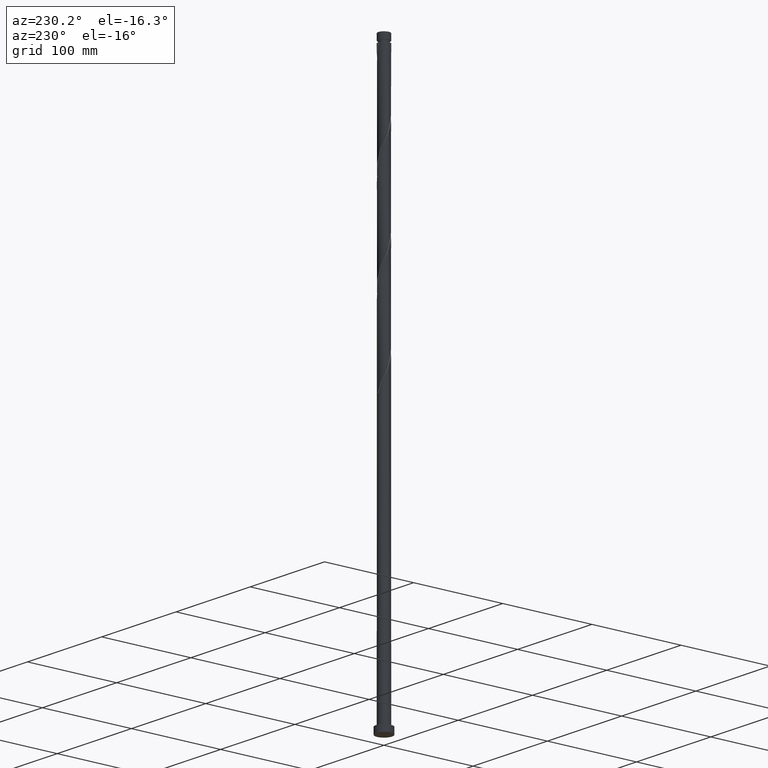
[diagram: clean part render]
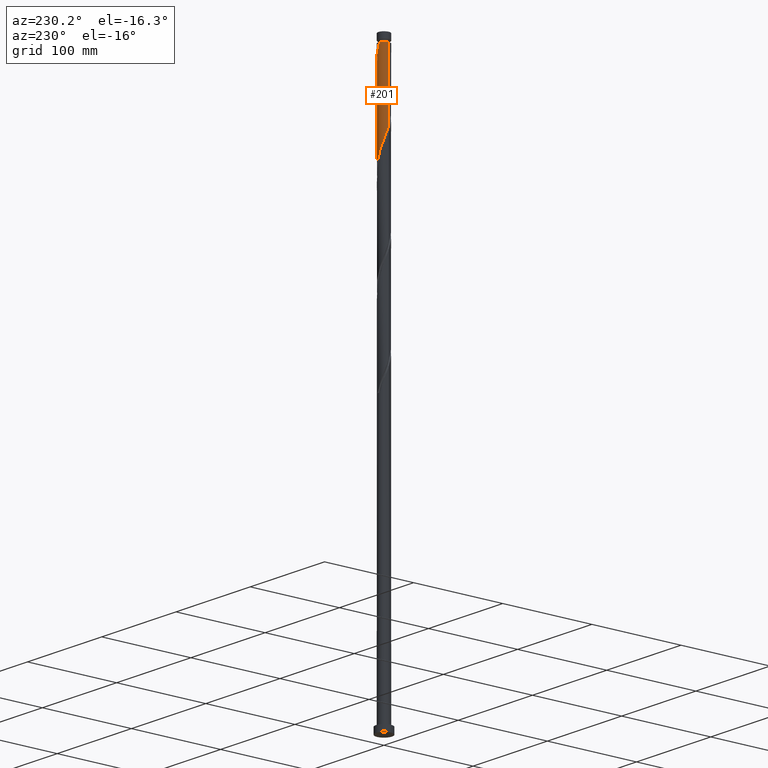
[diagram: same view with one face highlighted and labeled with its STEP entity id]
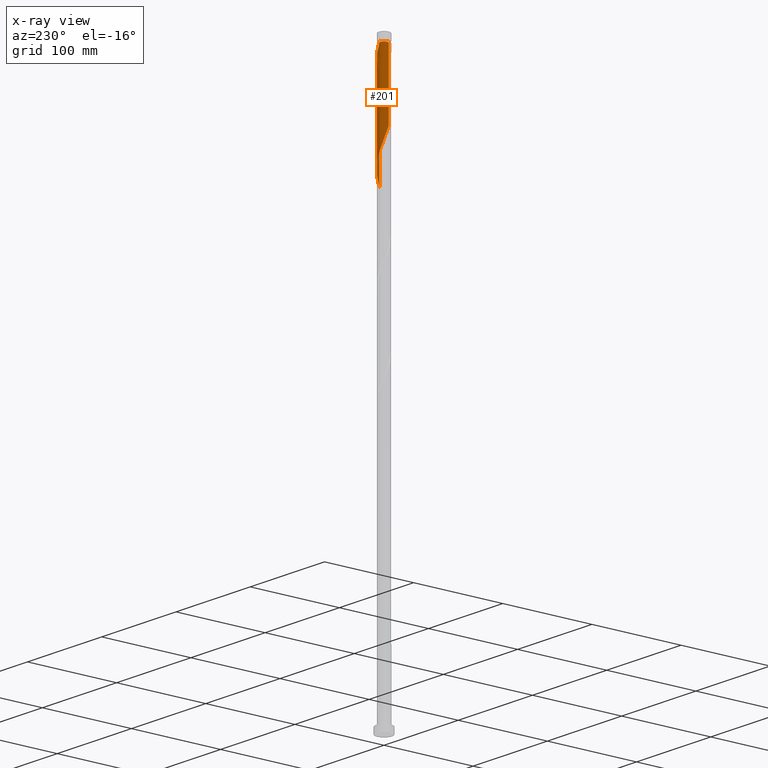
[diagram: x-ray of the same camera — body ghosted, the highlighted face saturated]
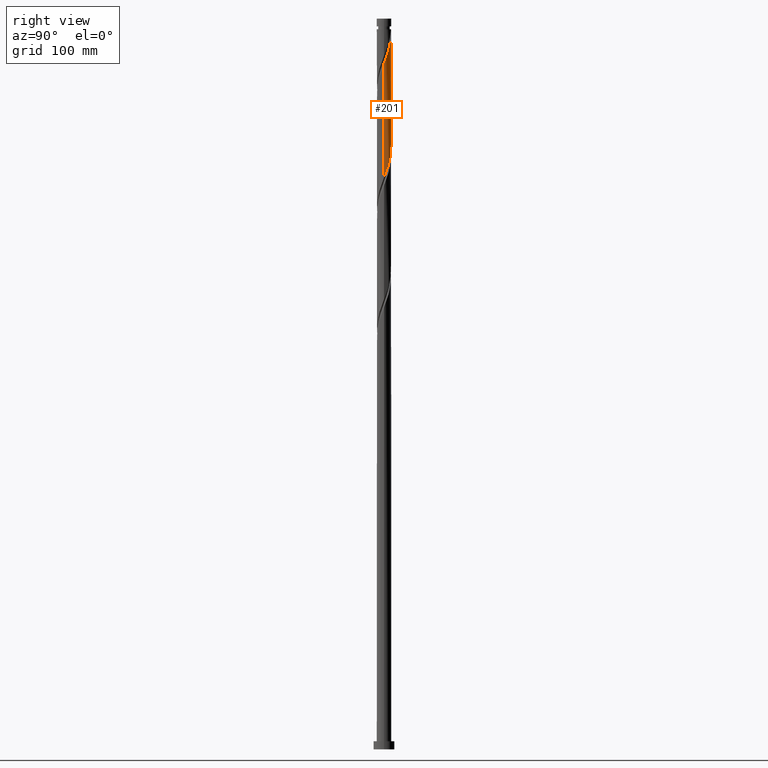
[diagram: same view with one face highlighted and labeled with its STEP entity id]
A machine part, auxiliary view. The second image highlights one B-rep face of the part: STEP entity #201.
The next image is the same camera in x-ray: the body ghosted, the highlighted face saturated — about 0% of this face is hidden behind the body in this view.
A second angle (right view) of the same face is appended — the face is thin or edge-on in the first view.
In plain terms, the highlighted cylindrical surface (edge-blend (fillet) strip) has radius 6.25 mm, axis along (-0, -0, -1).
Its self-contained STEP definition (entity closure, byte-faithful):
#12 = VERTEX_POINT ( 'NONE', #1456 ) ;
#73 = VERTEX_POINT ( 'NONE', #112 ) ;
#76 = AXIS2_PLACEMENT_3D ( 'NONE', #161, #1340, #1509 ) ;
#90 = CARTESIAN_POINT ( 'NONE',  ( -3.207255081654753592, 5.364327995303769470, 528.1155306014414919 ) ) ;
#99 = CARTESIAN_POINT ( 'NONE',  ( -6.213629152942616862, 0.6732850434263681905, 543.5567070720297806 ) ) ;
#110 = CARTESIAN_POINT ( 'NONE',  ( 6.187074021647200439, 1.057368058992053994, 495.6890600132061877 ) ) ;
#112 = CARTESIAN_POINT ( 'NONE',  ( -1.243734296381637794, 6.124999999983996801, 620.7625894249711109 ) ) ;
#133 = EDGE_LOOP ( 'NONE', ( #1832, #446, #1118, #1156, #441 ) ) ;
#151 = CARTESIAN_POINT ( 'NONE',  ( 2.166952786544130038, 5.862321692033692244, 611.4978835426180694 ) ) ;
#161 = CARTESIAN_POINT ( 'NONE',  ( 0.000000000000000000, 0.000000000000000000, 630.0000000000000000 ) ) ;
#168 = EDGE_CURVE ( 'NONE', #1854, #73, #1480, .T. ) ;
#201 = ADVANCED_FACE ( 'NONE', ( #1895 ), #379, .T. ) ;
#256 = VECTOR ( 'NONE', #620, 1000.000000000000000 ) ;
#277 = CARTESIAN_POINT ( 'NONE',  ( 5.887436458037860199, 2.176236226627274561, 498.7772953073238682 ) ) ;
#286 = CARTESIAN_POINT ( 'NONE',  ( 5.045516553015568562, 3.688531240649304266, 503.4096482485003321 ) ) ;
#305 = CARTESIAN_POINT ( 'NONE',  ( 3.704333273337804933, 5.067132045009369534, 606.8655306014414919 ) ) ;
#318 = CARTESIAN_POINT ( 'NONE',  ( 6.151240105858516216, 1.249062577133805085, 594.5125894249711109 ) ) ;
#358 = AXIS2_PLACEMENT_3D ( 'NONE', #1531, #1025, #519 ) ;
#379 = CYLINDRICAL_SURFACE ( 'NONE', #76, 6.250000000000000000 ) ;
#386 = VERTEX_POINT ( 'NONE', #396 ) ;
#392 = CARTESIAN_POINT ( 'NONE',  ( -0.6761694631508416986, 6.240248954859151986, 619.2184717779118728 ) ) ;
#396 = CARTESIAN_POINT ( 'NONE',  ( 6.250000000000012434, 3.047503660553396625E-15, 591.1643806502768257 ) ) ;
#415 = CARTESIAN_POINT ( 'NONE',  ( 5.387309307051770801, 3.220995279672364653, 501.8655306014415487 ) ) ;
#419 = CARTESIAN_POINT ( 'NONE',  ( 6.250000000000001776, -7.260229308965499018E-15, 492.8607981996651120 ) ) ;
#426 = CARTESIAN_POINT ( 'NONE',  ( 0.09709155987255846387, 6.249245812816258017, 518.8508247190885641 ) ) ;
#436 = CARTESIAN_POINT ( 'NONE',  ( 0.6761694631508501363, 6.240248954859140440, 517.3067070720296670 ) ) ;
#441 = ORIENTED_EDGE ( 'NONE', *, *, #168, .T. ) ;
#446 = ORIENTED_EDGE ( 'NONE', *, *, #576, .T. ) ;
#467 = CARTESIAN_POINT ( 'NONE',  ( 4.928495079256989264, 3.843492715452935027, 602.2331776602650280 ) ) ;
#478 = CARTESIAN_POINT ( 'NONE',  ( 2.710176889971715131, 5.661523945598186280, 609.9537658955590587 ) ) ;
#519 = DIRECTION ( 'NONE',  ( -1.000000000000000000, 0.000000000000000000, 0.000000000000000000 ) ) ;
#552 = CARTESIAN_POINT ( 'NONE',  ( -0.09709155987255929654, 6.249245812816266898, 617.6743541308532031 ) ) ;
#576 = EDGE_CURVE ( 'NONE', #386, #726, #1965, .T. ) ;
#584 = CARTESIAN_POINT ( 'NONE',  ( 5.637372882544817720, 2.698615753149816943, 500.3214129543825948 ) ) ;
#598 = CARTESIAN_POINT ( 'NONE',  ( -5.284647128575529429, 3.386800390923074389, 535.8361188367356363 ) ) ;
#607 = CARTESIAN_POINT ( 'NONE',  ( 6.250000000000001776, -7.260229308965499018E-15, 492.8607981996651120 ) ) ;
#617 = CARTESIAN_POINT ( 'NONE',  ( 1.811299129615714598, 6.009751045140860448, 514.2184717779121002 ) ) ;
#620 = DIRECTION ( 'NONE',  ( -0.000000000000000000, -0.000000000000000000, -1.000000000000000000 ) ) ;
#631 = CARTESIAN_POINT ( 'NONE',  ( 5.984114506671566858, 1.803572446851816169, 596.0567070720298943 ) ) ;
#642 = CARTESIAN_POINT ( 'NONE',  ( 5.816988907484617499, 2.358082316569833026, 597.6008247190884504 ) ) ;
#697 = CARTESIAN_POINT ( 'NONE',  ( 0.4819863434057365392, 6.258242670773383587, 616.1302364837945333 ) ) ;
#726 = VERTEX_POINT ( 'NONE', #419 ) ;
#761 = CARTESIAN_POINT ( 'NONE',  ( -2.710176889971708913, 5.661523945598179175, 526.5714129543827084 ) ) ;
#777 = CARTESIAN_POINT ( 'NONE',  ( -5.984114506671556200, 1.803572446851816613, 540.4684717779119865 ) ) ;
#821 = CARTESIAN_POINT ( 'NONE',  ( 1.623728683116538951, 6.063119438469199984, 613.0420011896766255 ) ) ;
#865 =( BOUNDED_CURVE ( )  B_SPLINE_CURVE ( 2, ( #1104, #1795, #99, #1774, #777, #932, #1461, #598, #1962, #1610, #1633, #1783, #90, #761, #1763, #1954, #1430, #2139, #426, #436, #1933, #617, #1921, #1944, #1070, #940, #1269, #2111, #286, #415, #584, #277, #1440, #110, #1093, #2131, #607 ),
 .UNSPECIFIED., .F., .T. ) 
 B_SPLINE_CURVE_WITH_KNOTS ( ( 3, 2, 2, 2, 2, 2, 2, 2, 2, 2, 2, 2, 2, 2, 2, 2, 2, 2, 3 ),
 ( 0.4295293573162903278, 0.4338235294117647189, 0.4411764705882352811, 0.4485294117647058987, 0.4558823529411764608, 0.4632352941176470784, 0.4705882352941176405, 0.4779411764705882582, 0.4852941176470588203, 0.4926470588235294379, 0.5000000000000000000, 0.5073529411764705621, 0.5147058823529411242, 0.5220588235294117974, 0.5294117647058823595, 0.5367647058823529216, 0.5441176470588234837, 0.5514705882352941568, 0.5545293573162902723 ),
 .UNSPECIFIED. ) 
 CURVE ( )  GEOMETRIC_REPRESENTATION_ITEM ( )  RATIONAL_B_SPLINE_CURVE ( ( 0.9072066346053120345, 0.9068261157890790125, 0.9090909090909502499, 0.9052128875409815034, 0.9090909090909502499, 0.9052128875409815034, 0.9090909090909502499, 0.9052128875409815034, 0.9090909090909502499, 0.9052128875409815034, 0.9090909090909502499, 0.9052128875409815034, 0.9090909090909502499, 0.9052128875409815034, 0.9090909090909502499, 0.9052128875409815034, 0.9090909090909502499, 0.9052128875409815034, 0.9090909090909502499, 0.9052128875409815034, 0.9090909090909502499, 0.9052128875409815034, 0.9090909090909502499, 0.9052128875409815034, 0.9090909090909502499, 0.9052128875409815034, 0.9090909090909502499, 0.9052128875409815034, 0.9090909090909502499, 0.9052128875409815034, 0.9090909090909502499, 0.9052128875409815034, 0.9090909090909502499, 0.9052128875409815034, 0.9090909090909502499, 0.9074776808428527408, 0.9072066346053119235 ) ) 
 REPRESENTATION_ITEM ( '' )  );
#910 = VECTOR ( 'NONE', #2090, 1000.000000000000000 ) ;
#911 = CARTESIAN_POINT ( 'NONE',  ( -6.249999999999936051, 0.000000000000000000, 620.7625894249708836 ) ) ;
#932 = CARTESIAN_POINT ( 'NONE',  ( -5.816988907484607729, 2.358082316569827697, 538.9243541308534304 ) ) ;
#940 = CARTESIAN_POINT ( 'NONE',  ( 3.859958618427602239, 4.949609239681936224, 508.0420011896768528 ) ) ;
#942 =( BOUNDED_CURVE ( )  B_SPLINE_CURVE ( 2, ( #2165, #1008, #2154, #318, #631, #642, #1982, #1992, #467, #1135, #1827, #305, #1656, #478, #151, #821, #1887, #697, #552, #392, #1056 ),
 .UNSPECIFIED., .F., .F. ) 
 B_SPLINE_CURVE_WITH_KNOTS ( ( 3, 2, 2, 2, 2, 2, 2, 2, 2, 2, 3 ),
 ( 0.6795293573162904943, 0.6838235294117647189, 0.6911764705882352811, 0.6985294117647058432, 0.7058823529411764053, 0.7132352941176469674, 0.7205882352941175295, 0.7279411764705882026, 0.7352941176470587648, 0.7426470588235293269, 0.7499999999999998890 ),
 .UNSPECIFIED. ) 
 CURVE ( )  GEOMETRIC_REPRESENTATION_ITEM ( )  RATIONAL_B_SPLINE_CURVE ( ( 0.9072066346053186958, 0.9068261157890857849, 0.9090909090909571333, 0.9052128875409882758, 0.9090909090909571333, 0.9052128875409882758, 0.9090909090909571333, 0.9052128875409882758, 0.9090909090909571333, 0.9052128875409882758, 0.9090909090909571333, 0.9052128875409882758, 0.9090909090909571333, 0.9052128875409882758, 0.9090909090909571333, 0.9052128875409882758, 0.9090909090909571333, 0.9052128875409882758, 0.9090909090909571333, 0.9052128875409883868, 0.9090909090909570223 ) ) 
 REPRESENTATION_ITEM ( '' )  );
#1008 = CARTESIAN_POINT ( 'NONE',  ( 6.250000000000012434, 0.3376248979954090124, 592.0682998822896934 ) ) ;
#1025 = DIRECTION ( 'NONE',  ( -0.000000000000000000, -0.000000000000000000, -1.000000000000000000 ) ) ;
#1037 = EDGE_CURVE ( 'NONE', #1854, #12, #1409, .T. ) ;
#1056 = CARTESIAN_POINT ( 'NONE',  ( -1.243734296381637794, 6.124999999983996801, 620.7625894249709972 ) ) ;
#1070 = CARTESIAN_POINT ( 'NONE',  ( 3.372352897531488480, 5.262103755582074882, 509.5861188367356363 ) ) ;
#1085 = CARTESIAN_POINT ( 'NONE',  ( 6.250000000000000000, 7.654042494670957606E-16, 630.0000000000000000 ) ) ;
#1089 = EDGE_CURVE ( 'NONE', #12, #726, #865, .T. ) ;
#1093 = CARTESIAN_POINT ( 'NONE',  ( 6.231546110836961638, 0.4799302746365626260, 494.1449423661475180 ) ) ;
#1104 = CARTESIAN_POINT ( 'NONE',  ( -6.250000000000001776, -5.348070149402569723E-15, 545.3607981996650551 ) ) ;
#1118 = ORIENTED_EDGE ( 'NONE', *, *, #1089, .F. ) ;
#1135 = CARTESIAN_POINT ( 'NONE',  ( 4.572343029938441994, 4.300185039982787671, 603.7772953073238114 ) ) ;
#1156 = ORIENTED_EDGE ( 'NONE', *, *, #1037, .F. ) ;
#1269 = CARTESIAN_POINT ( 'NONE',  ( 4.281841208703486501, 4.552838220654087387, 506.4978835426178989 ) ) ;
#1340 = DIRECTION ( 'NONE',  ( -0.000000000000000000, -0.000000000000000000, -1.000000000000000000 ) ) ;
#1392 = CARTESIAN_POINT ( 'NONE',  ( -6.250000000000000000, 0.000000000000000000, 630.0000000000000000 ) ) ;
#1409 = LINE ( 'NONE', #1392, #910 ) ;
#1430 = CARTESIAN_POINT ( 'NONE',  ( -1.052857513261133970, 6.160681054621281127, 521.9390600132062445 ) ) ;
#1433 = EDGE_CURVE ( 'NONE', #386, #73, #942, .T. ) ;
#1440 = CARTESIAN_POINT ( 'NONE',  ( 6.037255239842528987, 1.616802142809666831, 497.2331776602650848 ) ) ;
#1456 = CARTESIAN_POINT ( 'NONE',  ( -6.250000000000001776, -5.348070149402568934E-15, 545.3607981996650551 ) ) ;
#1461 = CARTESIAN_POINT ( 'NONE',  ( -5.550818018030069467, 2.872441353746451487, 537.3802364837945333 ) ) ;
#1480 = CIRCLE ( 'NONE', #358, 6.249999999999936051 ) ;
#1509 = DIRECTION ( 'NONE',  ( -1.000000000000000000, 0.000000000000000000, 0.000000000000000000 ) ) ;
#1531 = CARTESIAN_POINT ( 'NONE',  ( 0.000000000000000000, 0.000000000000000000, 620.7625894249708836 ) ) ;
#1610 = CARTESIAN_POINT ( 'NONE',  ( -4.572343029938433112, 4.300185039982783231, 532.7478835426180694 ) ) ;
#1633 = CARTESIAN_POINT ( 'NONE',  ( -4.138338151638117246, 4.683658542496072386, 531.2037658955590587 ) ) ;
#1656 = CARTESIAN_POINT ( 'NONE',  ( 3.207255081654760254, 5.364327995303778351, 608.4096482485003889 ) ) ;
#1763 = CARTESIAN_POINT ( 'NONE',  ( -2.166952786544121601, 5.862321692033684251, 525.0272953073239250 ) ) ;
#1774 = CARTESIAN_POINT ( 'NONE',  ( -6.151240105858505558, 1.249062577133805529, 542.0125894249709972 ) ) ;
#1783 = CARTESIAN_POINT ( 'NONE',  ( -3.704333273337800492, 5.067132045009359764, 529.6596482485003889 ) ) ;
#1795 = CARTESIAN_POINT ( 'NONE',  ( -6.250000000000001776, 0.3376248979953973550, 544.4568789676523011 ) ) ;
#1827 = CARTESIAN_POINT ( 'NONE',  ( 4.138338151638126128, 4.683658542496076826, 605.3214129543827084 ) ) ;
#1832 = ORIENTED_EDGE ( 'NONE', *, *, #1433, .F. ) ;
#1854 = VERTEX_POINT ( 'NONE', #911 ) ;
#1887 = CARTESIAN_POINT ( 'NONE',  ( 1.052857513261137301, 6.160681054621292674, 614.5861188367356363 ) ) ;
#1895 = FACE_OUTER_BOUND ( 'NONE', #133, .T. ) ;
#1921 = CARTESIAN_POINT ( 'NONE',  ( 2.348023153125542883, 5.792174658311536994, 512.6743541308533167 ) ) ;
#1933 = CARTESIAN_POINT ( 'NONE',  ( 1.243734296383284255, 6.124999999999999112, 515.7625894249708836 ) ) ;
#1944 = CARTESIAN_POINT ( 'NONE',  ( 2.884747176635376498, 5.574598271482217093, 511.1302364837944197 ) ) ;
#1954 = CARTESIAN_POINT ( 'NONE',  ( -1.623728683116535620, 6.063119438469188438, 523.4831776602651416 ) ) ;
#1962 = CARTESIAN_POINT ( 'NONE',  ( -4.928495079256983935, 3.843492715452928365, 534.2920011896767392 ) ) ;
#1965 = LINE ( 'NONE', #1085, #256 ) ;
#1982 = CARTESIAN_POINT ( 'NONE',  ( 5.550818018030080125, 2.872441353746455039, 599.1449423661473475 ) ) ;
#1992 = CARTESIAN_POINT ( 'NONE',  ( 5.284647128575540087, 3.386800390923078830, 600.6890600132062445 ) ) ;
#2090 = DIRECTION ( 'NONE',  ( -0.000000000000000000, -0.000000000000000000, -1.000000000000000000 ) ) ;
#2111 = CARTESIAN_POINT ( 'NONE',  ( 4.703723798979369874, 4.156067201626242991, 504.9537658955589450 ) ) ;
#2131 = CARTESIAN_POINT ( 'NONE',  ( 6.249999999999999112, 0.2403199242980287587, 493.5042039517247758 ) ) ;
#2139 = CARTESIAN_POINT ( 'NONE',  ( -0.4819863434057327645, 6.258242670773373817, 520.3949423661473475 ) ) ;
#2154 = CARTESIAN_POINT ( 'NONE',  ( 6.213629152942627520, 0.6732850434263684125, 592.9684717779119865 ) ) ;
#2165 = CARTESIAN_POINT ( 'NONE',  ( 6.250000000000012434, 3.047503660553396625E-15, 591.1643806502768257 ) ) ;